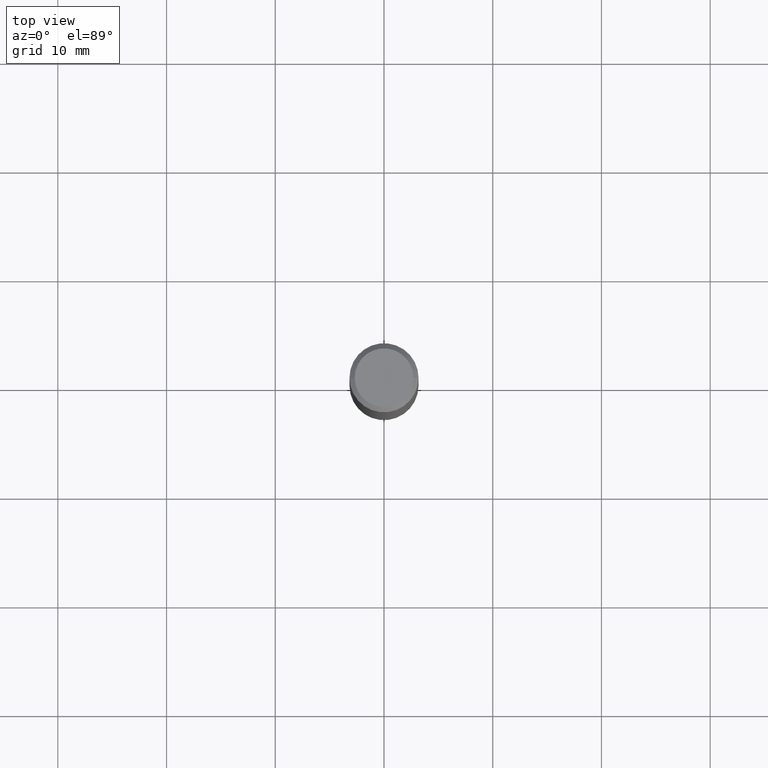
[diagram: clean part render]
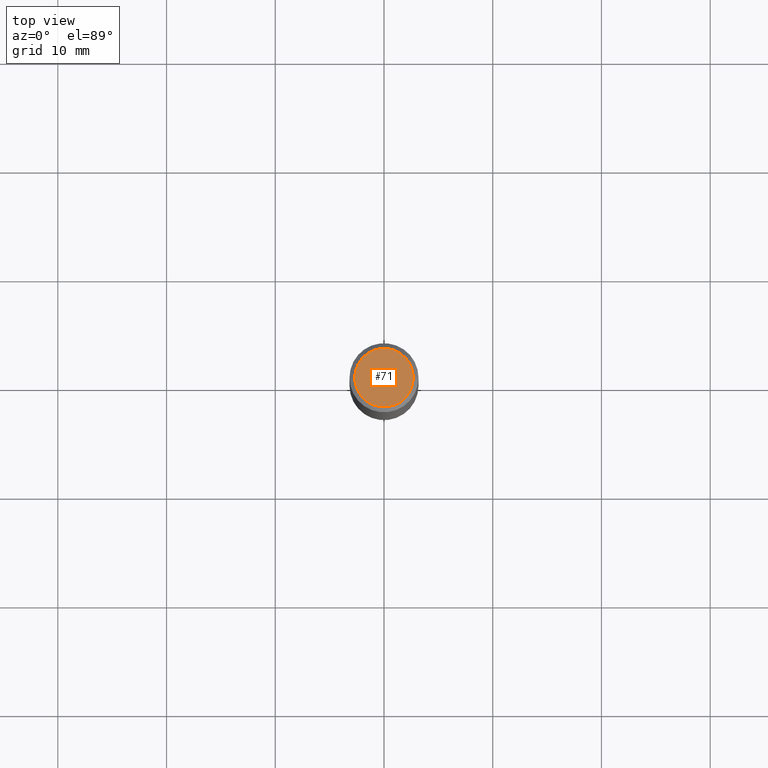
[diagram: same view with one face highlighted and labeled with its STEP entity id]
A machine part, top view. The second image highlights one B-rep face of the part: STEP entity #71.
In plain terms, the highlighted planar face has unit normal (0, -0, -1).
Its self-contained STEP definition (entity closure, byte-faithful):
#15 = FACE_OUTER_BOUND ( 'NONE', #427, .T. ) ;
#22 = VERTEX_POINT ( 'NONE', #355 ) ;
#42 = DIRECTION ( 'NONE',  ( 1.000000000000000000, -6.982962677686266711E-15, 4.875930095424100059E-29 ) ) ;
#52 = PLANE ( 'NONE',  #461 ) ;
#67 = VERTEX_POINT ( 'NONE', #116 ) ;
#71 = ADVANCED_FACE ( 'NONE', ( #15 ), #52, .F. ) ;
#76 = ORIENTED_EDGE ( 'NONE', *, *, #345, .T. ) ;
#84 = DIRECTION ( 'NONE',  ( -1.000000000000000000, 6.982962677686265922E-15, -4.876176775795935793E-29 ) ) ;
#90 = DIRECTION ( 'NONE',  ( -2.445468806185136597E-29, 3.491481338843145583E-15, 1.000000000000000000 ) ) ;
#116 = CARTESIAN_POINT ( 'NONE',  ( 0.1062499999999999972, -8.259777185439879685E-16, 6.505936120475796882E-18 ) ) ;
#119 = EDGE_CURVE ( 'NONE', #67, #22, #166, .T. ) ;
#151 = AXIS2_PLACEMENT_3D ( 'NONE', #206, #90, #42 ) ;
#166 = CIRCLE ( 'NONE', #151, 0.1062499999999999972 ) ;
#206 = CARTESIAN_POINT ( 'NONE',  ( -1.591006383764329968E-46, 2.271535455632767580E-32, 6.505936120470314915E-18 ) ) ;
#251 = CARTESIAN_POINT ( 'NONE',  ( -1.591006383764329968E-46, 2.271535455632767580E-32, 6.505936120470314915E-18 ) ) ;
#324 = DIRECTION ( 'NONE',  ( -2.445468806185136597E-29, 3.491481338843145583E-15, 1.000000000000000000 ) ) ;
#345 = EDGE_CURVE ( 'NONE', #22, #67, #424, .T. ) ;
#355 = CARTESIAN_POINT ( 'NONE',  ( -0.1062499999999999972, 7.746724220558198188E-16, 6.505936120465012444E-18 ) ) ;
#379 = ORIENTED_EDGE ( 'NONE', *, *, #119, .T. ) ;
#388 = CARTESIAN_POINT ( 'NONE',  ( -7.955031918821649840E-47, 1.135767727816383790E-32, 3.252968060235157457E-18 ) ) ;
#399 = DIRECTION ( 'NONE',  ( 1.000000000000000000, -6.982962677686266711E-15, 4.875930095424100059E-29 ) ) ;
#424 = CIRCLE ( 'NONE', #463, 0.1062499999999999972 ) ;
#427 = EDGE_LOOP ( 'NONE', ( #76, #379 ) ) ;
#461 = AXIS2_PLACEMENT_3D ( 'NONE', #388, #465, #84 ) ;
#463 = AXIS2_PLACEMENT_3D ( 'NONE', #251, #324, #399 ) ;
#465 = DIRECTION ( 'NONE',  ( 2.438088387897960049E-29, -3.491481338843145188E-15, -1.000000000000000000 ) ) ;